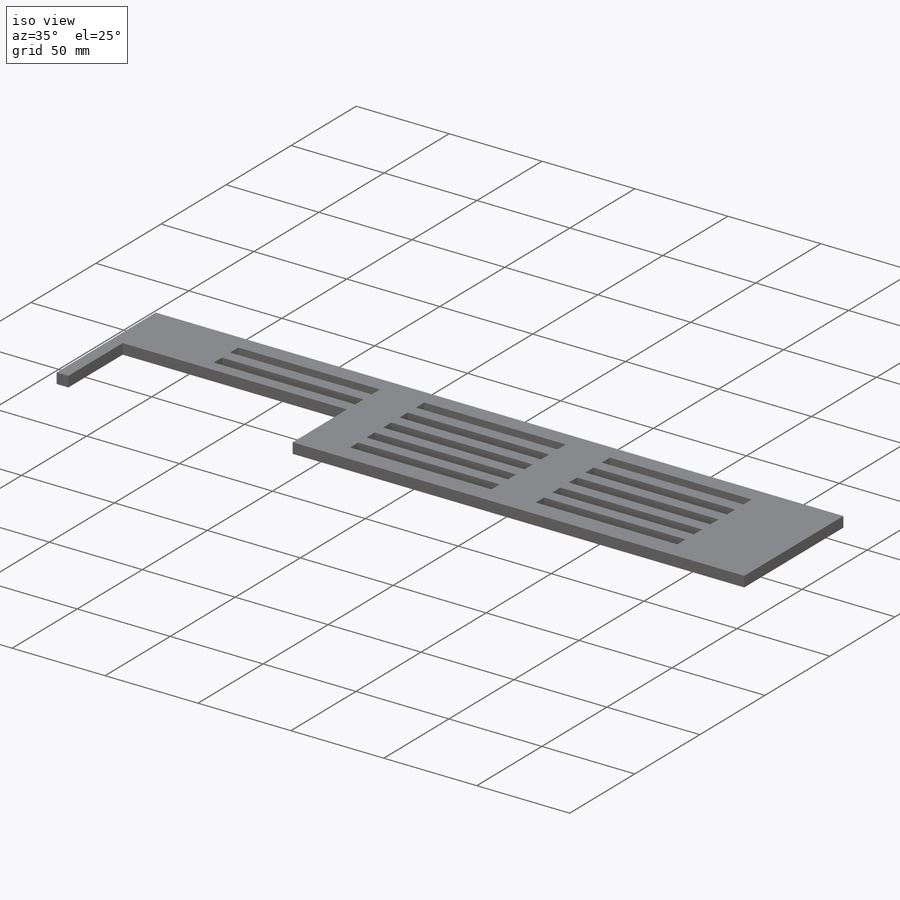
[diagram: iso view]
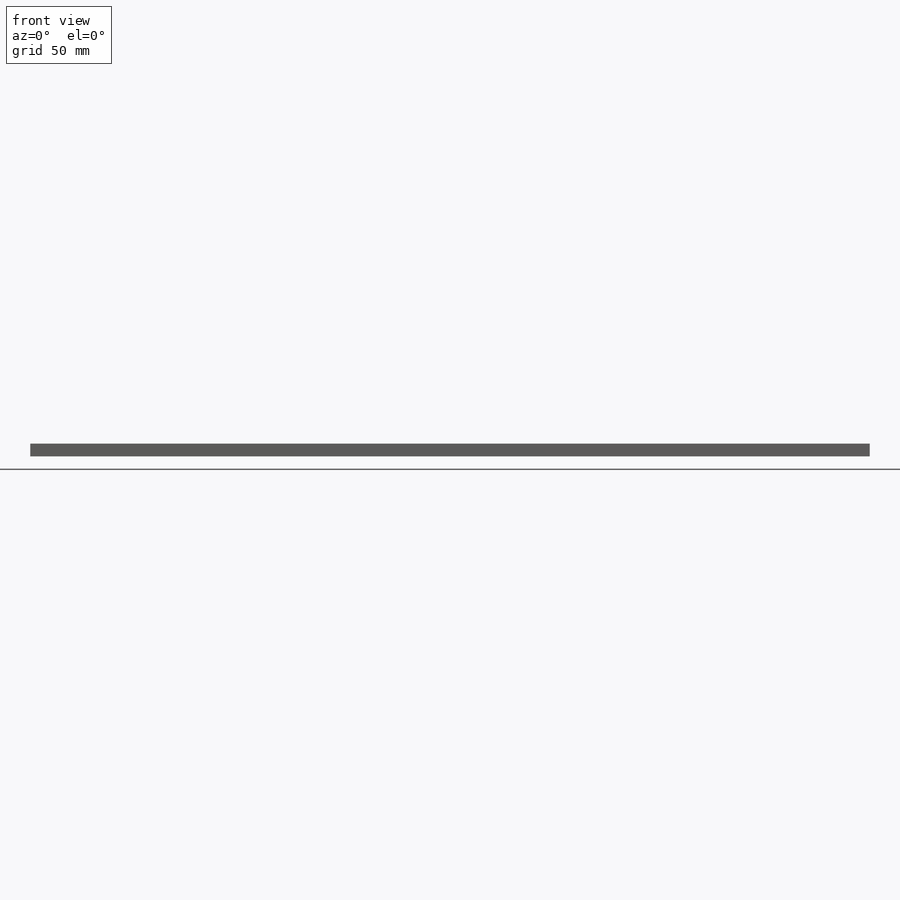
[diagram: front view]
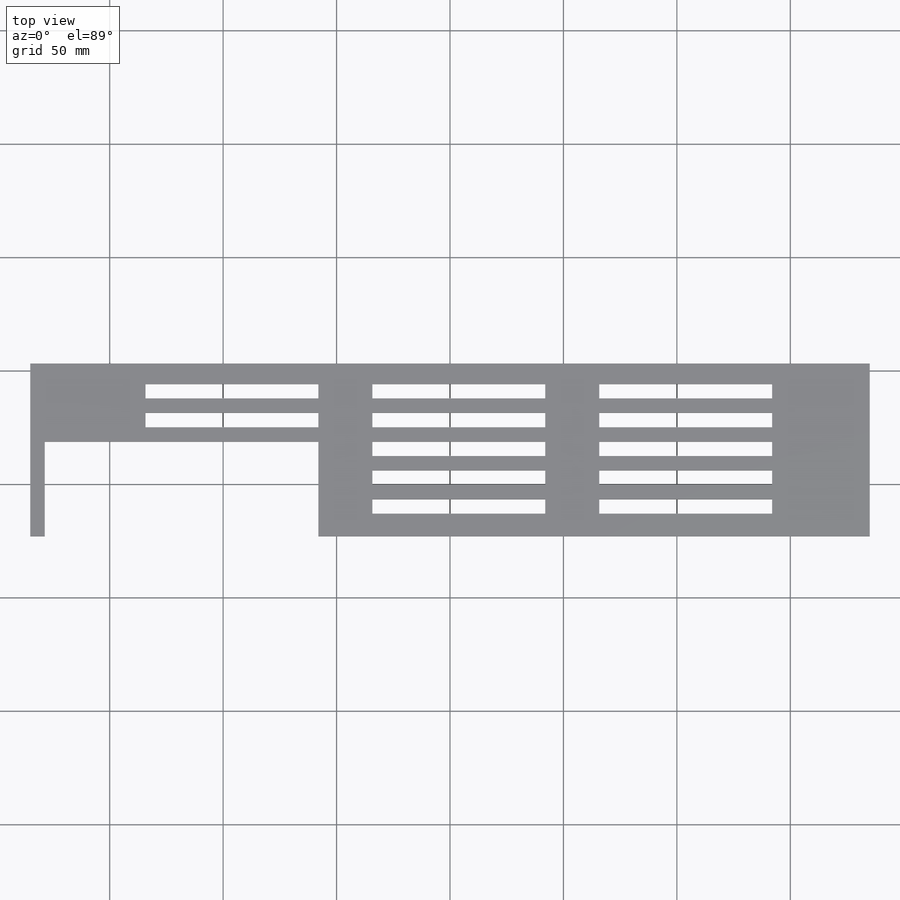
[diagram: top view]
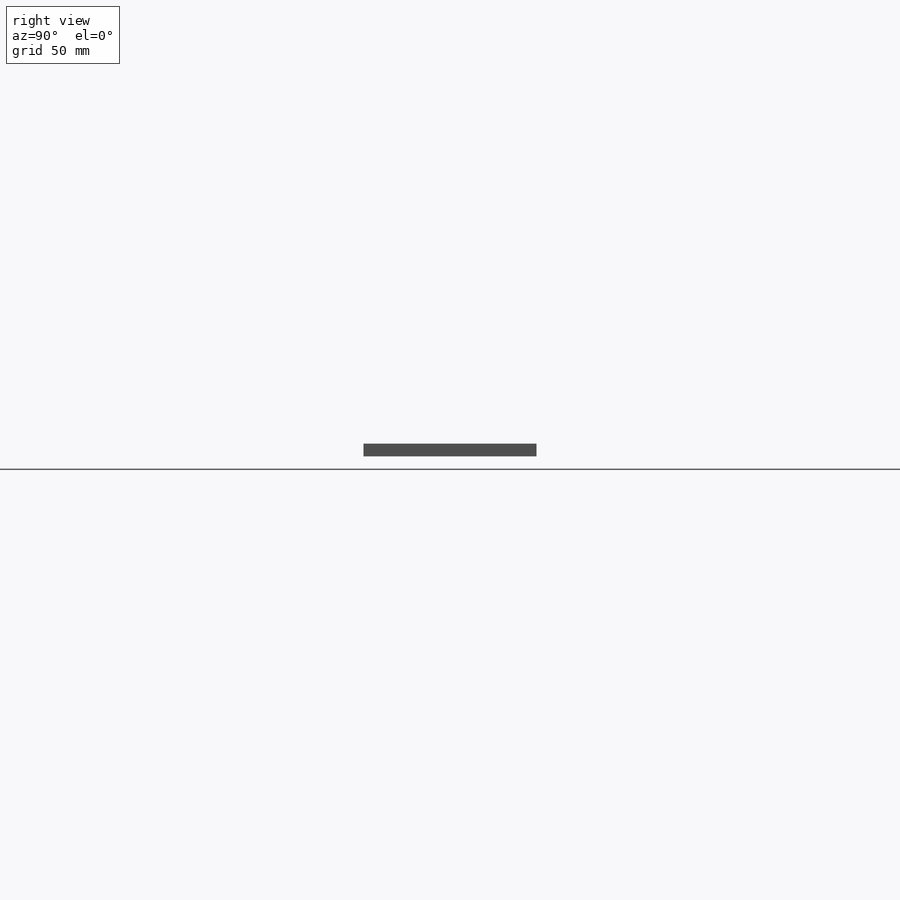
[diagram: right view]
SOLIDWORKS PART (.sldprt)
format: sldprt  version: not decoded by parser v0  size: 273,920 bytes
history: native  units: mm
features: sketch x3, cut_extrude x2, material x1, extrude x1, pattern_linear x1 (+13 scaffold rows collapsed)
feature tree (21):
  scaffold x13  (default folders/planes/origin — collapsed)
  material  "Acrylic (Medium-high impact)"
  sketch  "Sketch1"  dims[D10=10.0mm D11=10.0mm D1=6.35mm D2=370.0mm D3=76.2mm D4=76.2mm D5=185.0mm D6=3.175mm D7=3.175mm D8=6.35mm D9=6.35mm]
  extrude  "Boss-Extrude1"  Depth=5.6388mm
  sketch  "Sketch2"  dims[c1.D1=6.35mm c1.D2=6.35mm c1.D3=25.4mm c2.D1=50.8mm c2.D3=10.0mm c2.D4=76.2mm]
  cut_extrude  "Cut-Extrude1"  [1 undecoded]
  pattern_linear  "LPattern1"  Count1=5 Count2=3 Spacing1=12.7mm Spacing2=100mm
  sketch  "Sketch3"  dims[D1=6.35mm D2=41.75mm D3=120.65mm]
  cut_extrude  "Cut-Extrude2"  [1 undecoded]
decode coverage: 5 of 7 modeling features carry decoded parameters
note: 2 parameter values undecoded
note: suppression state not decoded; provenance and decode notes live in map.json
